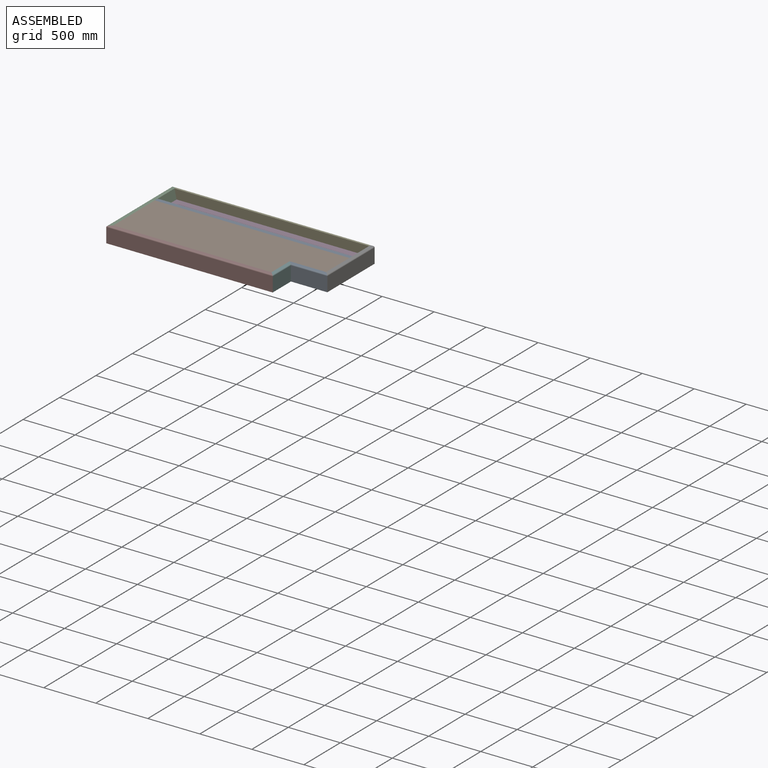
[diagram: assembled view]
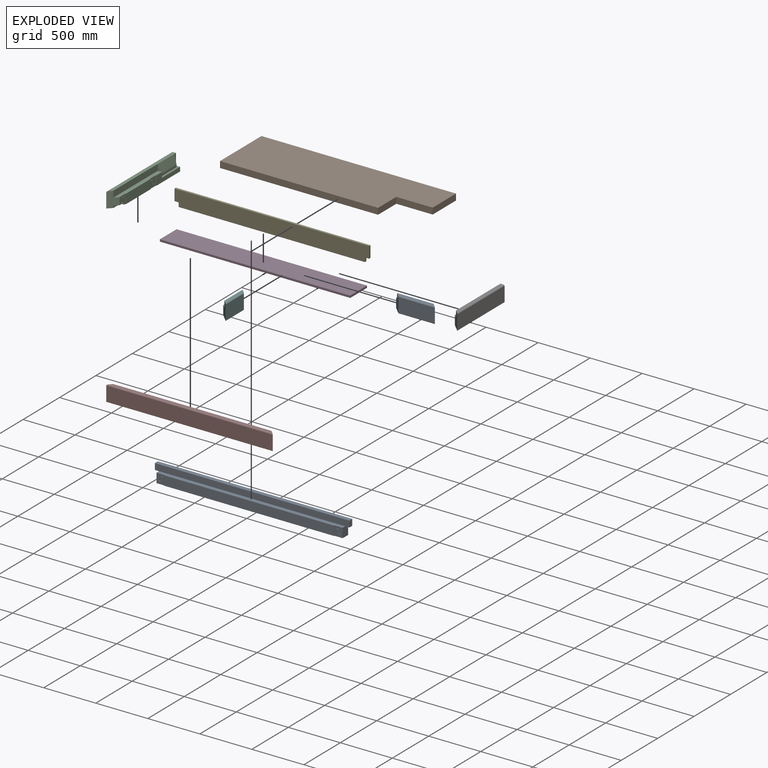
[diagram: exploded view]
GUIDED TOUR — MATED ASSEMBLY (Onshape document 42f6272286cb1acadc76b578, AutoMate assembly 42f6272286cb1acadc76b578_f72e64309311fbf2a8fe9fbc_b8c06668a1aec77b5423982b_default)

This assembly has 9 components, labeled P0..P8 below (a component is one placed occurrence of a part; the same part can appear more than once), held together by 7 mates. A mate is a constraint between two components; its type names the relative motion it leaves free:
  FASTENED — locks the two components together rigidly (no relative motion).
Axis/direction vectors are unit vectors and 'through' points are millimeter coordinates, both in the assembly's world frame.

MATES
  1. FASTENED "Fastened 5": P3 <-> P2, direction (0.000, 0.000, 1.000) through (60.00, 650.00, 40.00) mm
  2. FASTENED "Fastened 3": P5 <-> P7, direction (0.000, 0.000, 1.000) through (1600.00, 0.00, 0.00) mm
  3. FASTENED "Fastened 8": P2 <-> P4, direction (0.000, 1.000, 0.000) through (40.00, 900.00, 40.00) mm
  4. FASTENED "Fastened 6": P6 <-> P0, direction (0.000, 0.000, 1.000) through (1950.00, 250.00, 0.00) mm
  5. FASTENED "Fastened 9": P8 <-> P2, direction (0.000, 0.000, 1.000) through (40.00, 650.00, 90.00) mm
  6. FASTENED "Fastened 4": P0 <-> P5, direction (0.000, 0.000, 1.000) through (1525.00, 325.00, 0.00) mm
  7. FASTENED "Fastened 7": P7 <-> P1, direction (0.000, 0.000, 1.000) through (40.00, 40.00, 90.00) mm

ASSEMBLY ORDER
  1. P4 — the base component [order verified]
  2. P3 [order verified]
  3. P2 [order verified]
  4. P7 [order verified]
  5. P0 [order verified]
  6. P8 [order verified]
  7. P5 [order verified]
  8. P1 [order verified]
  9. P6 [order verified]
Order-tag legend:
  [order verified] — this step's position reverses a verified removal order: the component was checked to insert without passing through the ones already placed.

Of the 9 components, 6 carry the full construction recipe — the FeatureScript program that regenerates the part's solid from scratch; the rest are supplied as boundary geometry only.
Each toured component is shown spotlighted twice — in the assembled view, then in the exploded view, where a leader line traces a displaced component back to its assembled socket (saturated green if recipe-attached, orange if geometry-only; every other component desaturated gray) — followed by its recipe or geometry summary and the mates that hold it.
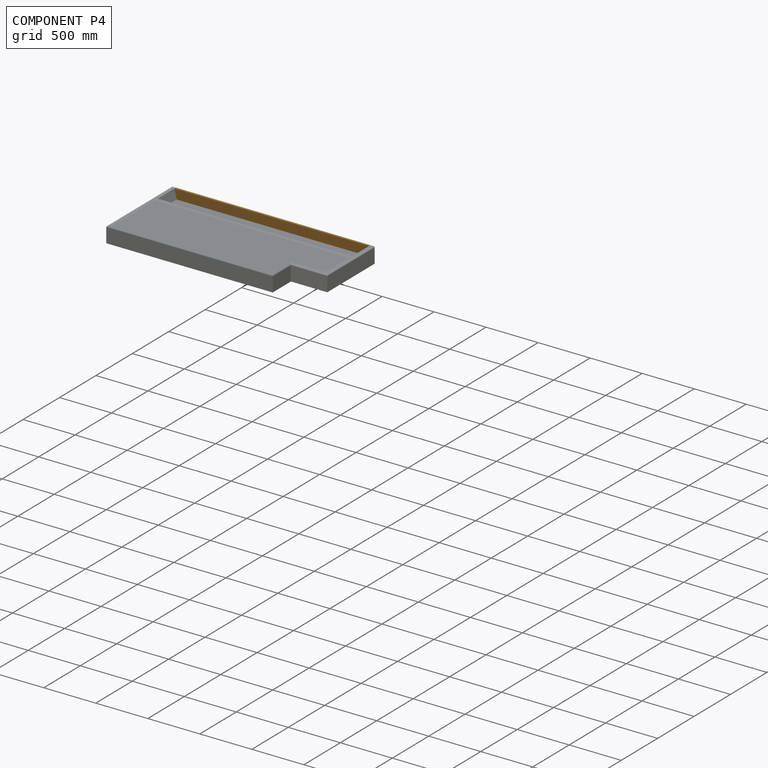
[diagram: component P4 — assembled]
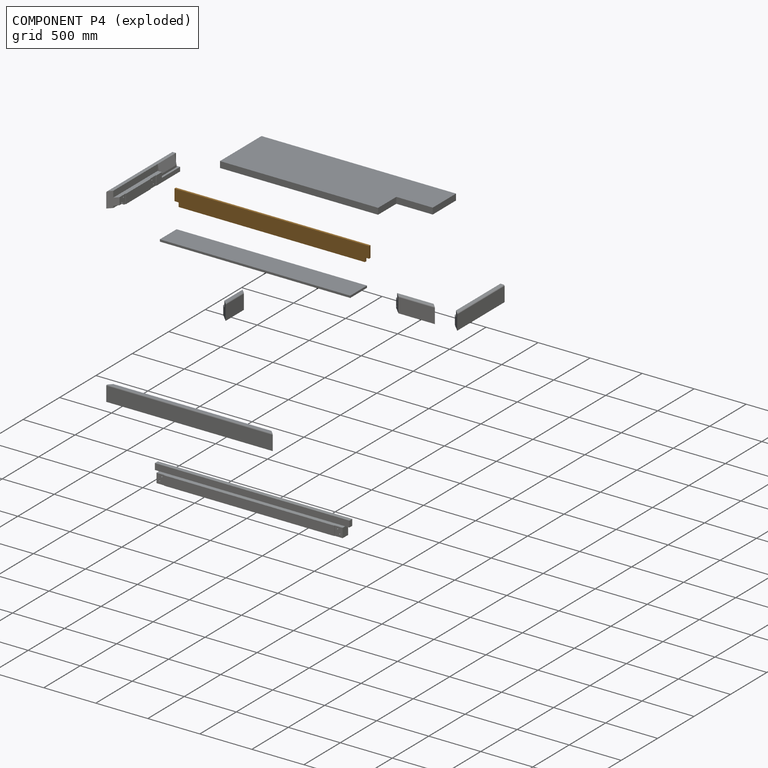
[diagram: component P4 — exploded]
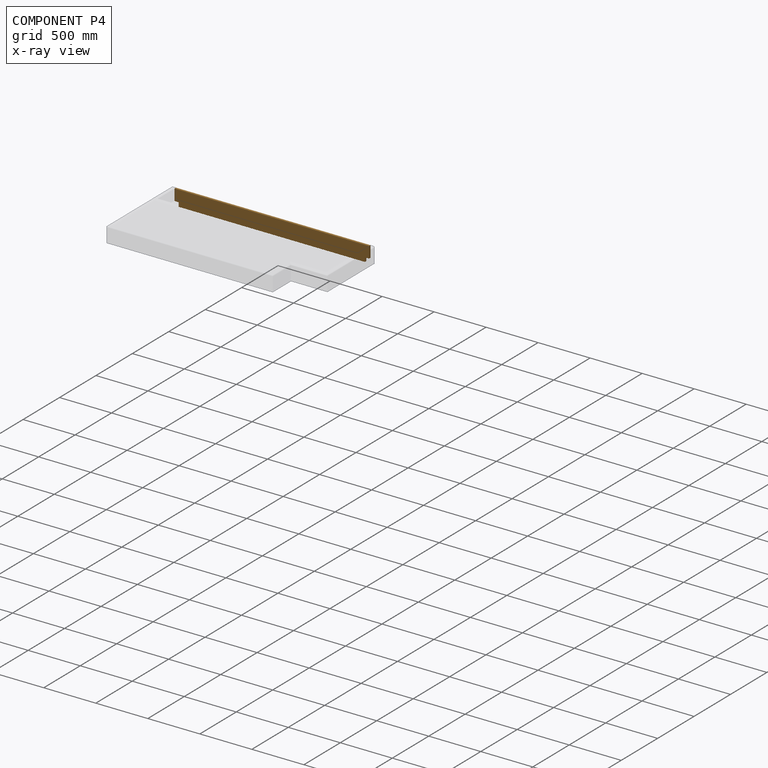
[diagram: component P4 — x-ray view]
COMPONENT P4 — geometry summary (no construction recipe available for this part):
  bounding box: 1870.0 x 150.0 x 20.0 mm
  B-rep topology: 1 solid, 10 faces, 48 edges
  volume: 5546000 mm^3 (99% of its bounding box)
  symmetry: 2-fold rotationally symmetric about the y axis; mirror-symmetric across its x mid-plane, z mid-plane
Held by: FASTENED mate "Fastened 8" to P2.
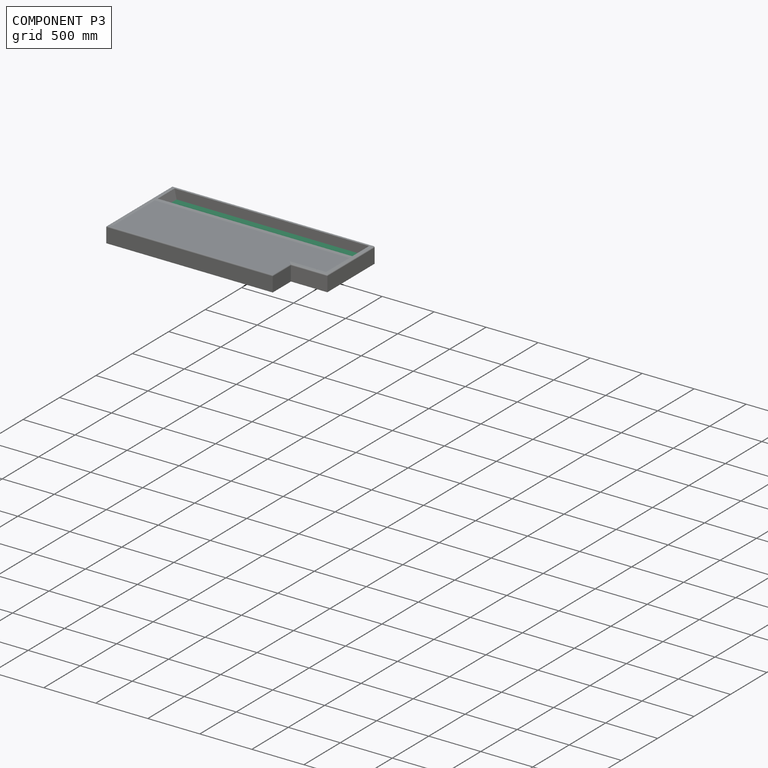
[diagram: component P3 — assembled]
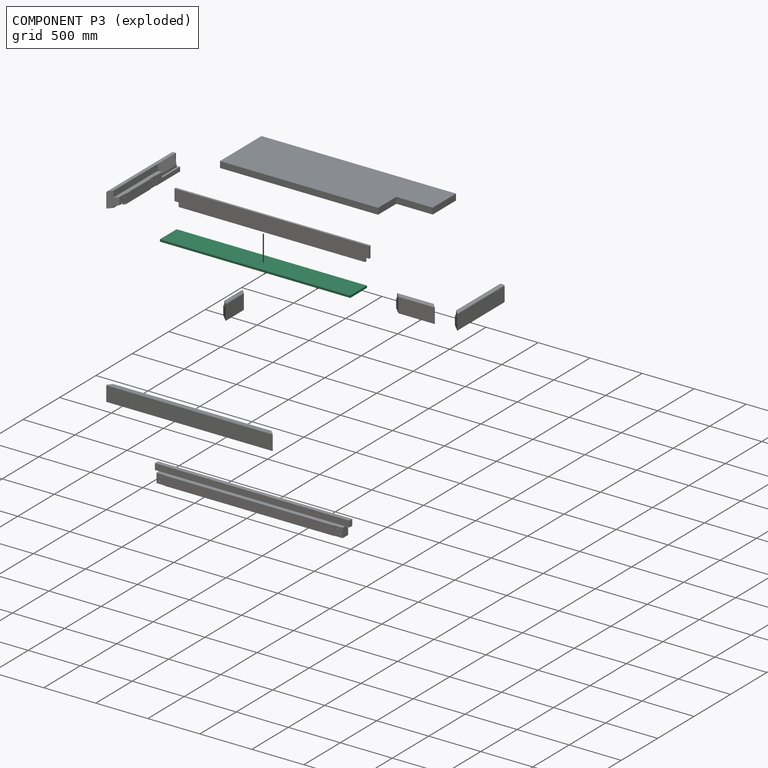
[diagram: component P3 — exploded]
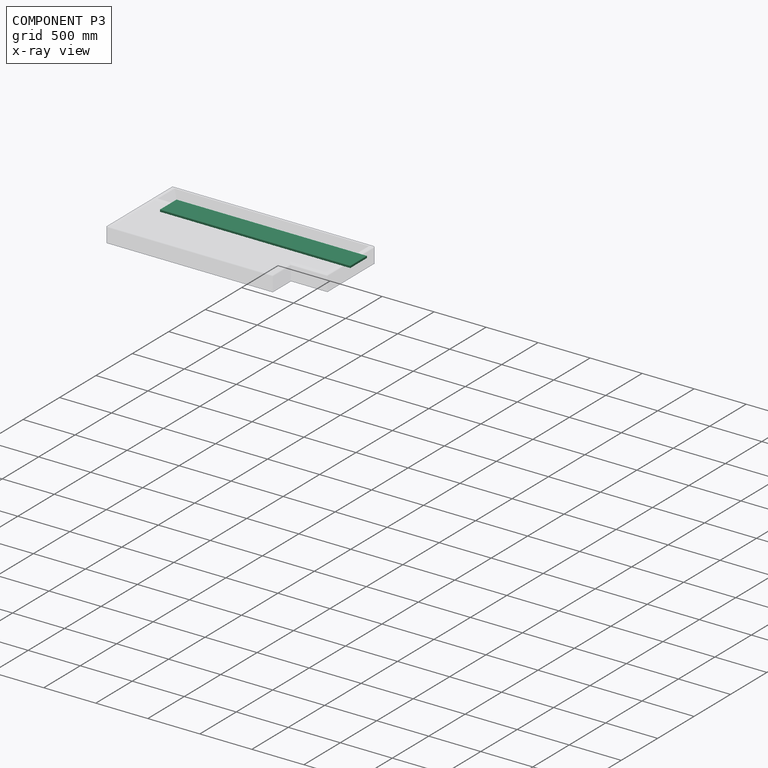
[diagram: component P3 — x-ray view]
COMPONENT P3 — recipe-attached (CADFS 00159863, mesh-verified: the recipe's output STEP matches this component's geometry to below the mesh-comparison resolution (tessellation chordal tolerance ~2.77 mm)).
Held by: FASTENED mate "Fastened 5" to P2.
Construction recipe (FeatureScript — the CAD program that rebuilds this solid; sketch coordinates are in the units given by the * unit suffixes, e.g. mm):

FeatureScript 1511;
import(path : "onshape/std/geometry.fs", version : "1511.0");
import(path : "onshape/std/common.fs", version : "1511.0");
const mm = millimeter;
const VERTEX = EntityType.VERTEX;
const EDGE = EntityType.EDGE;
const FACE = EntityType.FACE;
const BODY = EntityType.BODY;
function v(x, y){return vector(x, y);}
function OD(order){return orderDisambiguation(order);}
function OSD(set){return originalSetDisambiguation(set);}
function TD(topology){return topologyDisambiguation(topology);}
function TDD(query){return trueDependencyDisambiguation(query);}
function sQuery(a, b, c) {return sketchEntityQuery(a, b, c);}

annotation { "Feature Type Name" : "Feature", "Feature Type Description" : "" }
export const myFeature = defineFeature(function(context is Context, id is Id, definition is map)
    precondition{}
    {
        {
            assignVariable(context, id + "F0", {"name" : "t", "anyValue" : 20 * mm});
        }
        {
            var Q0;
            Q0=qCreatedBy(makeId("Top.planeOp"),FACE);
            var sketch = newSketch(context, id + "F1", { "sketchPlane" : qUnion([Q0])});
            skLineSegment(sketch, "E0.bottom", {"start": v(915, -115) * mm, "end": v(-915, -115) * mm});
            skLineSegment(sketch, "E0.top", {"start": v(915, 115) * mm, "end": v(-915, 115) * mm});
            skLineSegment(sketch, "E0.left", {"start": v(915, -115) * mm, "end": v(915, 115) * mm});
            skLineSegment(sketch, "E0.right", {"start": v(-915, -115) * mm, "end": v(-915, 115) * mm});
            skPoint(sketch, "E0.middle", {"position": v(0, 0) * mm});
            skSolve(sketch);
        }
        {
            var Q0;
            Q0 = qSketchRegion(id + "F1", true);
            extrude(context, id + "F2", {"entities" : qUnion([Q0]), "depth" : getVariable(context, 't')});
        }
    });
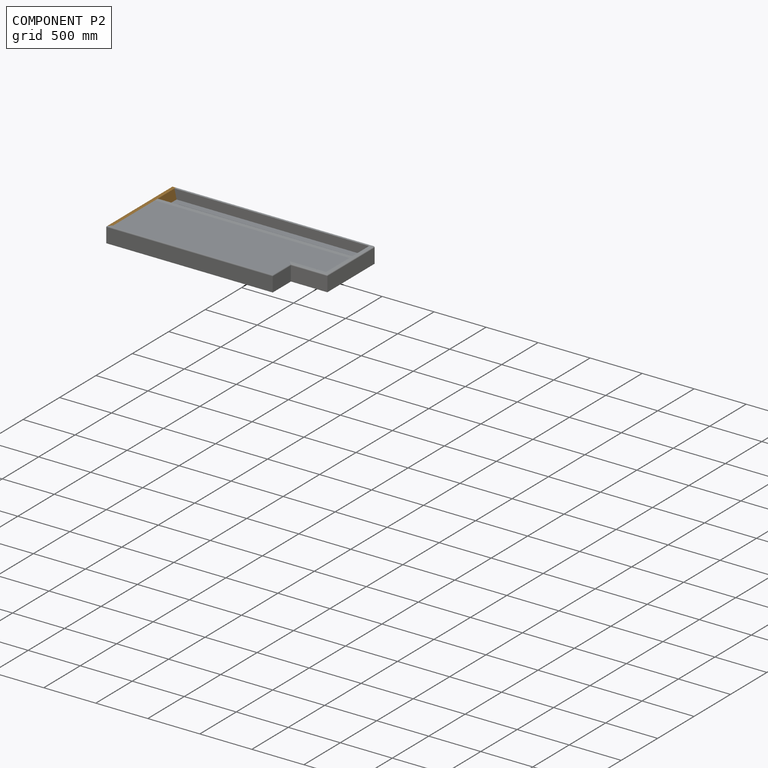
[diagram: component P2 — assembled]
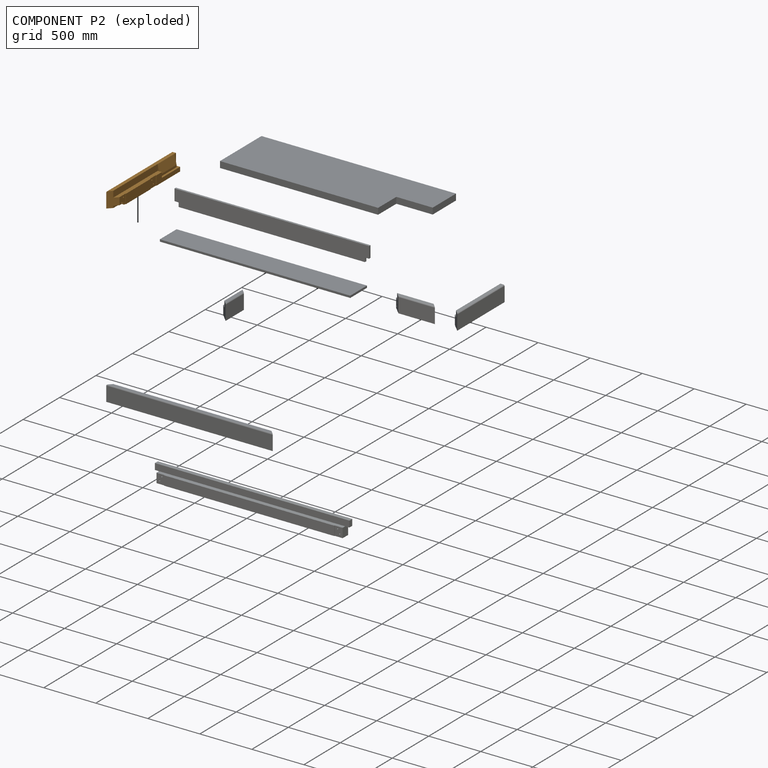
[diagram: component P2 — exploded]
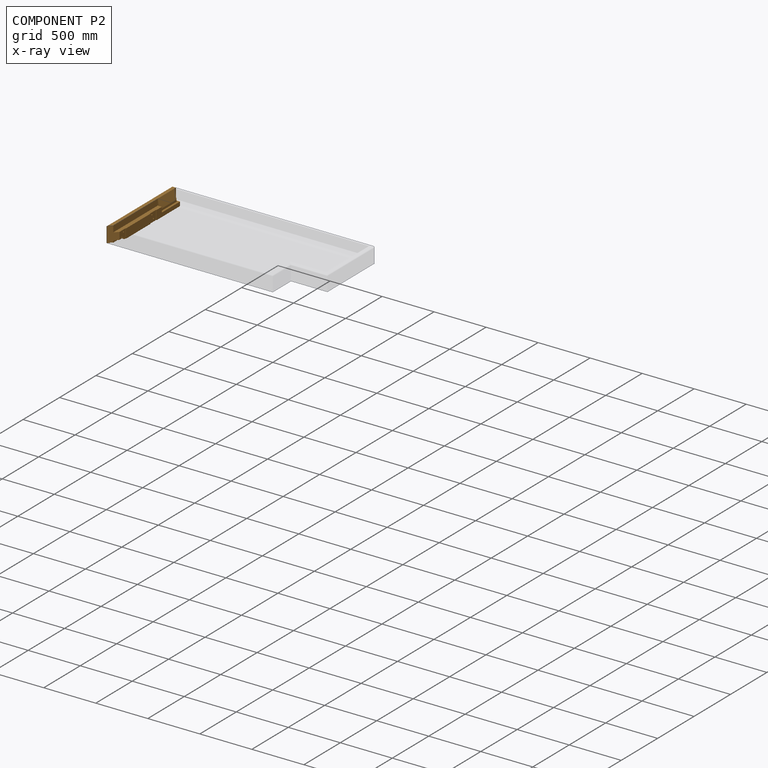
[diagram: component P2 — x-ray view]
COMPONENT P2 — geometry summary (no construction recipe available for this part):
  bounding box: 900.0 x 150.0 x 80.0 mm
  B-rep topology: 1 solid, 33 faces, 164 edges
  volume: 7933851 mm^3 (73% of its bounding box)
Held by: FASTENED mate "Fastened 5" to P3; FASTENED mate "Fastened 8" to P4; FASTENED mate "Fastened 9" to P8.
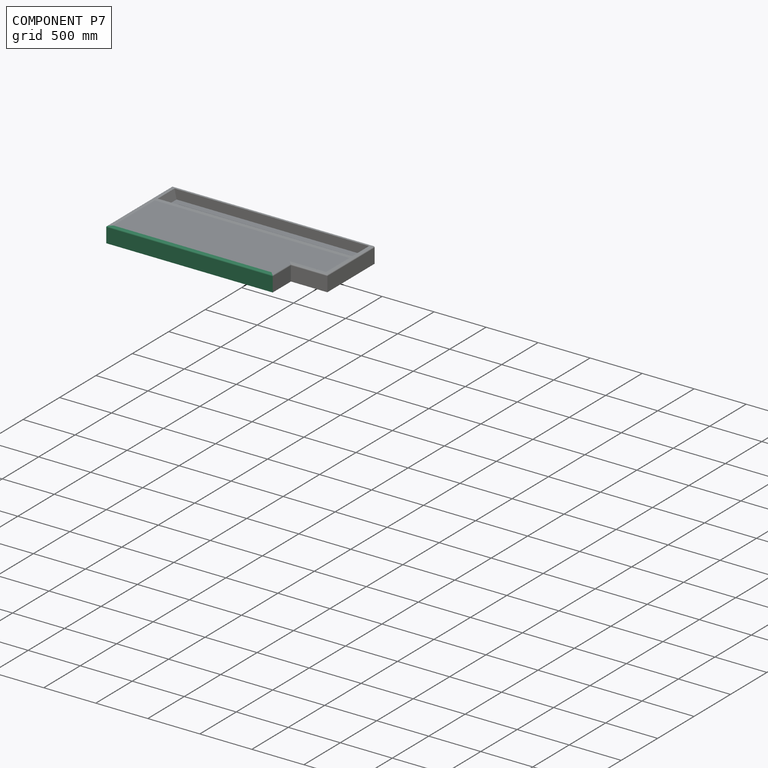
[diagram: component P7 — assembled]
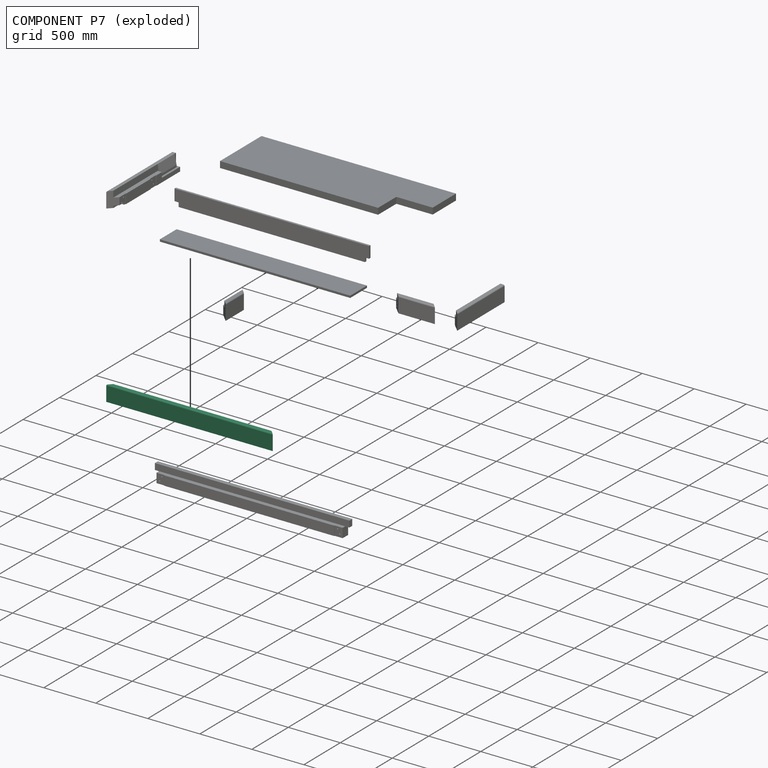
[diagram: component P7 — exploded]
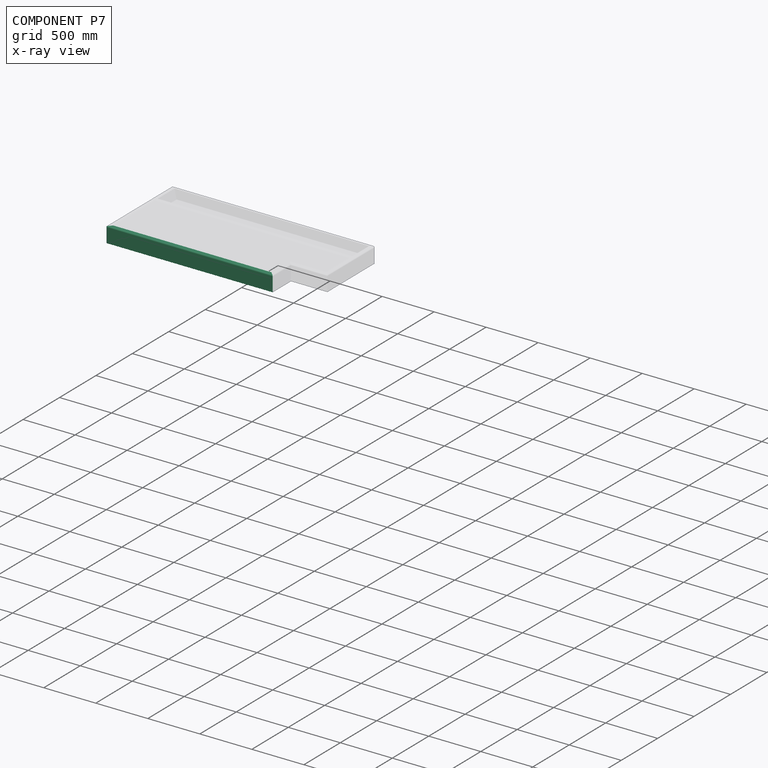
[diagram: component P7 — x-ray view]
COMPONENT P7 — recipe-attached (CADFS 00159865, mesh-verified: the recipe's output STEP matches this component's geometry to below the mesh-comparison resolution (tessellation chordal tolerance ~2.41 mm)).
Held by: FASTENED mate "Fastened 3" to P5; FASTENED mate "Fastened 7" to P1.
Construction recipe (FeatureScript — the CAD program that rebuilds this solid; sketch coordinates are in the units given by the * unit suffixes, e.g. mm):

FeatureScript 1511;
import(path : "onshape/std/geometry.fs", version : "1511.0");
import(path : "onshape/std/common.fs", version : "1511.0");
const mm = millimeter;
const VERTEX = EntityType.VERTEX;
const EDGE = EntityType.EDGE;
const FACE = EntityType.FACE;
const BODY = EntityType.BODY;
function v(x, y){return vector(x, y);}
function OD(order){return orderDisambiguation(order);}
function OSD(set){return originalSetDisambiguation(set);}
function TD(topology){return topologyDisambiguation(topology);}
function TDD(query){return trueDependencyDisambiguation(query);}
function sQuery(a, b, c) {return sketchEntityQuery(a, b, c);}

annotation { "Feature Type Name" : "Feature", "Feature Type Description" : "" }
export const myFeature = defineFeature(function(context is Context, id is Id, definition is map)
    precondition{}
    {
        {
            assignVariable(context, id + "F0", {"name" : "L", "anyValue" : 1700 * mm - 100 * mm});
        }
        {
            assignVariable(context, id + "F1", {"name" : "B", "anyValue" : 80 * mm});
        }
        {
            var Q0;
            Q0=qCreatedBy(makeId("Right.planeOp"),FACE);
            var sketch = newSketch(context, id + "F2", { "sketchPlane" : qUnion([Q0])});
            skLineSegment(sketch, "E0.bottom", {"start": v(-40, -75) * mm, "end": v(40, -75) * mm});
            skLineSegment(sketch, "E0.top", {"start": v(-40, 75) * mm, "end": v(0, 75) * mm});
            skLineSegment(sketch, "E0.left", {"start": v(-40, -75) * mm, "end": v(-40, 75) * mm});
            skLineSegment(sketch, "E0.right", {"start": v(40, -75) * mm, "end": v(40, 15) * mm});
            skPoint(sketch, "E0.middle", {"position": v(0, 0) * mm});
            skLineSegment(sketch, "E1", {"start": v(0, 75) * mm, "end": v(0, 15) * mm});
            skLineSegment(sketch, "E2", {"start": v(0, 15) * mm, "end": v(40, 15) * mm});
            skSolve(sketch);
        }
        {
            var Q0;
            Q0 = qSketchRegion(id + "F2", true);
            extrude(context, id + "F3", {"entities" : qUnion([Q0]), "endBound" : BoundingType.SYMMETRIC, "depth" : getVariable(context, 'L')});
        }
        {
            var Q0;
            Q0=makeQuery(id+"F3.opExtrude","CAP_EDGE",EDGE,{"disambiguationData":[OSD([sQuery(id+"F2.wireOp",EDGE,"E0.right")])],"isStart":false});
            var Q1;
            Q1=makeQuery(id+"F3.opExtrude","CAP_EDGE",EDGE,{"disambiguationData":[OSD([sQuery(id+"F2.wireOp",EDGE,"E0.right")])],"isStart":true});
            chamfer(context, id + "F4", {"entities" : qUnion([Q0, Q1]), "width" : getVariable(context, 'B'), "tangentPropagation" : true});
        }
        {
            var Q0;
            Q0=makeQuery(id+"F3.opExtrude","SWEPT_FACE",FACE,{"disambiguationData":[OSD([sQuery(id+"F2.wireOp",EDGE,"E0.right")])]});
            var sketch = newSketch(context, id + "F5", { "sketchPlane" : qUnion([Q0])});
            skCircle(sketch, "E3", {"center": v(-690, -45) * mm, "radius": 6 * mm});
            skCircle(sketch, "E4", {"center": v(-670, -5) * mm, "radius": 6 * mm});
            skCircle(sketch, "E5.MirrorC", {"center": v(670, -5) * mm, "radius": 6 * mm});
            skCircle(sketch, "E6.MirrorC", {"center": v(690, -45) * mm, "radius": 6 * mm});
            skSolve(sketch);
        }
        {
            var Q0;
            Q0 = qSketchRegion(id + "F5", true);
            extrude(context, id + "F6", {"entities" : qUnion([Q0]), "operationType" : NewBodyOperationType.REMOVE, "oppositeDirection" : true, "depth" : getVariable(context, 'B') - 30 * mm});
        }
        {
            var Q0;
            Q0=makeQuery(id+"F3.opExtrude","SWEPT_FACE",FACE,{"disambiguationData":[OSD([sQuery(id+"F2.wireOp",EDGE,"E0.right")])]});
            var sketch = newSketch(context, id + "F7", { "sketchPlane" : qUnion([Q0])});
            skLineSegment(sketch, "E7.bottom", {"start": v(-644, 15) * mm, "end": v(-760, 15) * mm});
            skLineSegment(sketch, "E7.top", {"start": v(-644, -75) * mm, "end": v(-760, -75) * mm});
            skLineSegment(sketch, "E7.left", {"start": v(-644, 15) * mm, "end": v(-644, -75) * mm});
            skLineSegment(sketch, "E7.right", {"start": v(-760, 15) * mm, "end": v(-760, -75) * mm});
            skLineSegment(sketch, "E8.MirrorCS", {"start": v(760, 15) * mm, "end": v(760, -75) * mm});
            skLineSegment(sketch, "E9.MirrorCS", {"start": v(644, 15) * mm, "end": v(760, 15) * mm});
            skLineSegment(sketch, "E10.MirrorCS", {"start": v(644, 15) * mm, "end": v(644, -75) * mm});
            skLineSegment(sketch, "E11.MirrorCS", {"start": v(644, -75) * mm, "end": v(760, -75) * mm});
            skSolve(sketch);
        }
        {
            var Q0;
            Q0 = qSketchRegion(id + "F7", true);
            extrude(context, id + "F8", {"entities" : qUnion([Q0]), "operationType" : NewBodyOperationType.REMOVE, "oppositeDirection" : true, "depth" : 5 * mm});
        }
        {
            var Q0;
            Q0=makeQuery(id+"F3.opExtrude","SWEPT_EDGE",EDGE,{"disambiguationData":[OSD([sQuery(id+"F2.wireOp",EDGE,"E0.top"),sQuery(id+"F2.wireOp",EDGE,"E0.left")])]});
            fillet(context, id + "F9", {"entities" : qUnion([Q0]), "radius" : 10 * mm, "tangentPropagation" : true, "allowEdgeOverflow" : false});
        }
        {
            var Q0;
            Q0=makeQuery(id+"F3.opExtrude","SWEPT_FACE",FACE,{"disambiguationData":[OSD([sQuery(id+"F2.wireOp",EDGE,"E0.bottom")])]});
            var sketch = newSketch(context, id + "F10", { "sketchPlane" : qUnion([Q0])});
            skLineSegment(sketch, "E12.bottom", {"start": v(-660, -100) * mm, "end": v(-760, -100) * mm});
            skLineSegment(sketch, "E12.top", {"start": v(-660, 0) * mm, "end": v(-760, 0) * mm});
            skLineSegment(sketch, "E12.left", {"start": v(-660, -100) * mm, "end": v(-660, 0) * mm});
            skLineSegment(sketch, "E12.right", {"start": v(-760, -100) * mm, "end": v(-760, 0) * mm});
            skLineSegment(sketch, "E13", {"start": v(-660, -50) * mm, "end": v(-760, -50) * mm, "construction": true});
            skSolve(sketch);
        }
        {
            var Q0;
            Q0 = qSketchRegion(id + "F10", true);
            extrude(context, id + "F11", {"entities" : qUnion([Q0]), "operationType" : NewBodyOperationType.REMOVE, "oppositeDirection" : true, "depth" : 20 * mm});
        }
    });
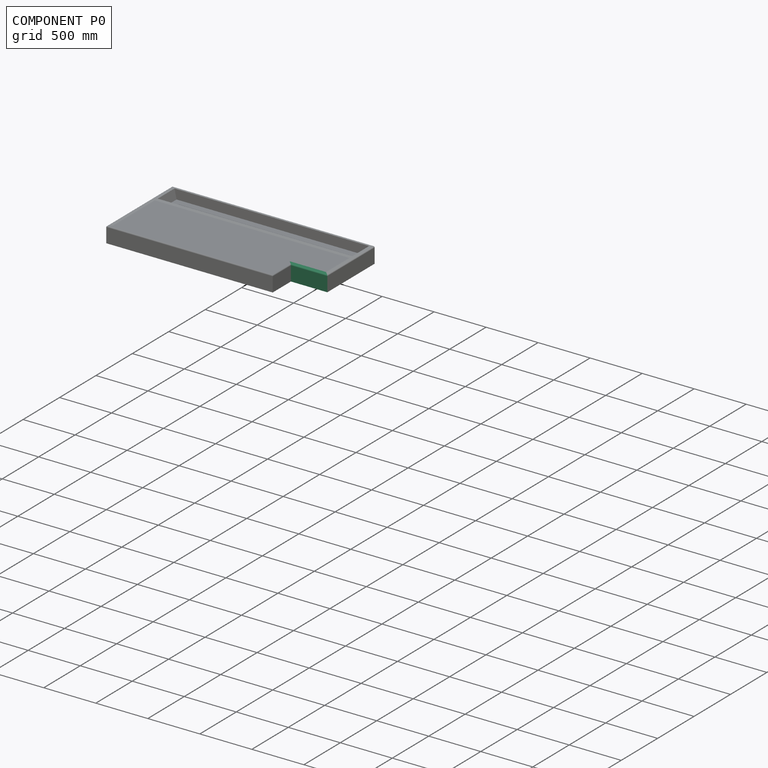
[diagram: component P0 — assembled]
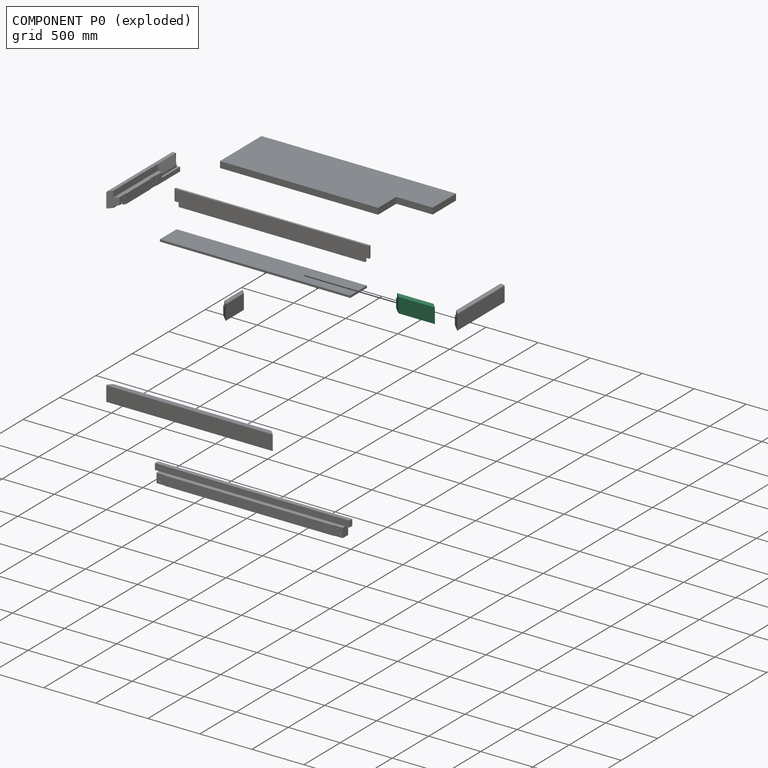
[diagram: component P0 — exploded]
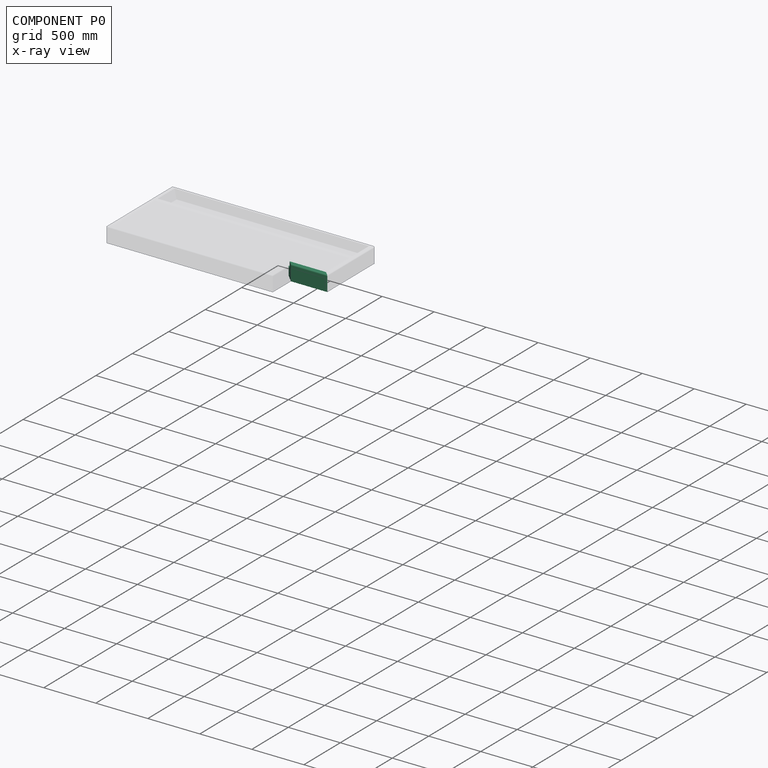
[diagram: component P0 — x-ray view]
COMPONENT P0 — recipe-attached (CADFS 00159867, mesh-verified: the recipe's output STEP matches this component's geometry to below the mesh-comparison resolution (tessellation chordal tolerance ~0.687 mm)).
Held by: FASTENED mate "Fastened 6" to P6; FASTENED mate "Fastened 4" to P5.
Construction recipe (FeatureScript — the CAD program that rebuilds this solid; sketch coordinates are in the units given by the * unit suffixes, e.g. mm):

FeatureScript 1511;
import(path : "onshape/std/geometry.fs", version : "1511.0");
import(path : "onshape/std/common.fs", version : "1511.0");
const mm = millimeter;
const VERTEX = EntityType.VERTEX;
const EDGE = EntityType.EDGE;
const FACE = EntityType.FACE;
const BODY = EntityType.BODY;
function v(x, y){return vector(x, y);}
function OD(order){return orderDisambiguation(order);}
function OSD(set){return originalSetDisambiguation(set);}
function TD(topology){return topologyDisambiguation(topology);}
function TDD(query){return trueDependencyDisambiguation(query);}
function sQuery(a, b, c) {return sketchEntityQuery(a, b, c);}

annotation { "Feature Type Name" : "Feature", "Feature Type Description" : "" }
export const myFeature = defineFeature(function(context is Context, id is Id, definition is map)
    precondition{}
    {
        {
            assignVariable(context, id + "F0", {"name" : "L", "anyValue" : 330 * mm + 100 * mm});
        }
        {
            assignVariable(context, id + "F1", {"name" : "B", "anyValue" : 80 * mm});
        }
        {
            var Q0;
            Q0=qCreatedBy(makeId("Right.planeOp"),FACE);
            var sketch = newSketch(context, id + "F2", { "sketchPlane" : qUnion([Q0])});
            skLineSegment(sketch, "E0.bottom", {"start": v(-40, -75) * mm, "end": v(40, -75) * mm});
            skLineSegment(sketch, "E0.top", {"start": v(-40, 75) * mm, "end": v(0, 75) * mm});
            skLineSegment(sketch, "E0.left", {"start": v(-40, -75) * mm, "end": v(-40, 75) * mm});
            skLineSegment(sketch, "E0.right", {"start": v(40, -75) * mm, "end": v(40, 15) * mm});
            skPoint(sketch, "E0.middle", {"position": v(0, 0) * mm});
            skLineSegment(sketch, "E1", {"start": v(0, 75) * mm, "end": v(0, 15) * mm});
            skLineSegment(sketch, "E2", {"start": v(0, 15) * mm, "end": v(40, 15) * mm});
            skSolve(sketch);
        }
        {
            var Q0;
            Q0=qSketchRegion(id+"F2",true);
            extrude(context, id + "F3", {"entities" : qUnion([Q0]), "endBound" : BoundingType.SYMMETRIC, "depth" : getVariable(context, 'L')});
        }
        {
            var Q0;
            Q0=makeQuery(id+"F3.opExtrude","CAP_EDGE",EDGE,{"disambiguationData":[OSD([sQuery(id+"F2.wireOp",EDGE,"E0.right")])],"isStart":false});
            var Q1;
            Q1=makeQuery(id+"F3.opExtrude","CAP_EDGE",EDGE,{"disambiguationData":[OSD([sQuery(id+"F2.wireOp",EDGE,"E0.left")])],"isStart":true});
            chamfer(context, id + "F4", {"entities" : qUnion([Q0, Q1]), "width" : getVariable(context, 'B'), "tangentPropagation" : true});
        }
        {
            var Q0;
            Q0=makeQuery(id+"F3.opExtrude","SWEPT_FACE",FACE,{"disambiguationData":[OSD([sQuery(id+"F2.wireOp",EDGE,"E0.right")])]});
            var sketch = newSketch(context, id + "F5", { "sketchPlane" : qUnion([Q0])});
            skCircle(sketch, "E3", {"center": v(-105, -45) * mm, "radius": 6 * mm});
            skCircle(sketch, "E4", {"center": v(-85, -5) * mm, "radius": 6 * mm});
            skLineSegment(sketch, "E5", {"start": v(40, 15) * mm, "end": v(40, -75) * mm, "construction": true});
            skCircle(sketch, "E6.MirrorC", {"center": v(165, -5) * mm, "radius": 6 * mm});
            skCircle(sketch, "E7.MirrorC", {"center": v(185, -45) * mm, "radius": 6 * mm});
            skSolve(sketch);
        }
        {
            var Q0;
            Q0=qSketchRegion(id+"F5",true);
            extrude(context, id + "F6", {"entities" : qUnion([Q0]), "operationType" : NewBodyOperationType.REMOVE, "oppositeDirection" : true, "depth" : getVariable(context, 'B') - 30 * mm});
        }
        {
            var Q0;
            Q0=makeQuery(id+"F3.opExtrude","SWEPT_FACE",FACE,{"disambiguationData":[OSD([sQuery(id+"F2.wireOp",EDGE,"E0.right")])]});
            var sketch = newSketch(context, id + "F7", { "sketchPlane" : qUnion([Q0])});
            skLineSegment(sketch, "E8.bottom", {"start": v(-59, 15) * mm, "end": v(-175, 15) * mm});
            skLineSegment(sketch, "E8.top", {"start": v(-59, -75) * mm, "end": v(-175, -75) * mm});
            skLineSegment(sketch, "E8.left", {"start": v(-59, 15) * mm, "end": v(-59, -75) * mm});
            skLineSegment(sketch, "E8.right", {"start": v(-175, 15) * mm, "end": v(-175, -75) * mm});
            skLineSegment(sketch, "E9", {"start": v(40, 15) * mm, "end": v(40, -75) * mm, "construction": true});
            skLineSegment(sketch, "E10.MirrorCS", {"start": v(139, 15) * mm, "end": v(139, -75) * mm});
            skLineSegment(sketch, "E11.MirrorCS", {"start": v(139, 15) * mm, "end": v(255, 15) * mm});
            skLineSegment(sketch, "E12.MirrorCS", {"start": v(139, -75) * mm, "end": v(255, -75) * mm});
            skLineSegment(sketch, "E13.MirrorCS", {"start": v(255, 15) * mm, "end": v(255, -75) * mm});
            skSolve(sketch);
        }
        {
            var Q0;
            Q0=qSketchRegion(id+"F7",true);
            extrude(context, id + "F8", {"entities" : qUnion([Q0]), "operationType" : NewBodyOperationType.REMOVE, "oppositeDirection" : true, "depth" : 5 * mm});
        }
        {
            var Q0;
            Q0=makeQuery(id+"F3.opExtrude","SWEPT_EDGE",EDGE,{"disambiguationData":[OSD([sQuery(id+"F2.wireOp",EDGE,"E0.top"),sQuery(id+"F2.wireOp",EDGE,"E0.left")])]});
            fillet(context, id + "F9", {"entities" : qUnion([Q0]), "radius" : 10 * mm, "tangentPropagation" : true, "allowEdgeOverflow" : false});
        }
    });
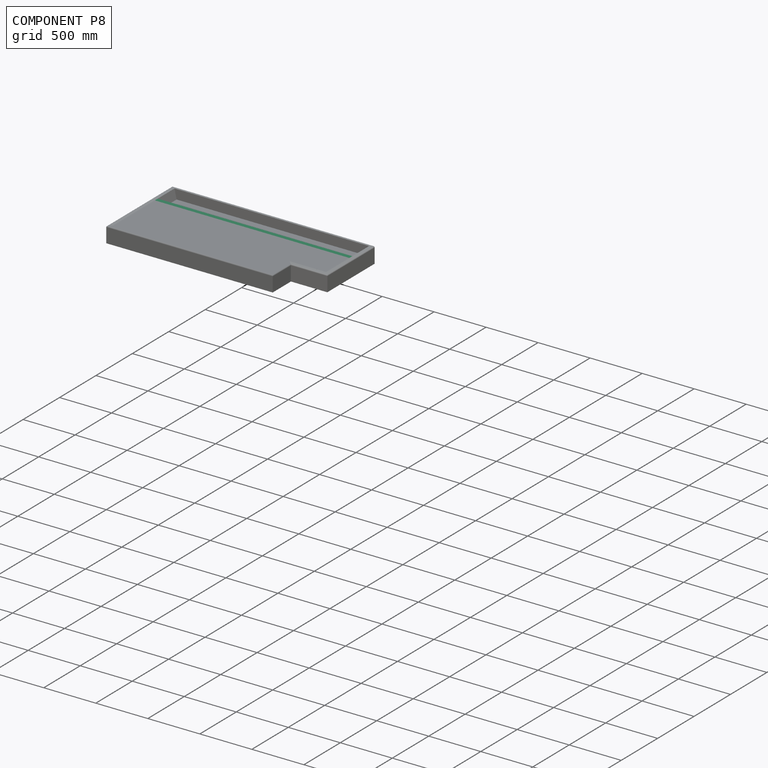
[diagram: component P8 — assembled]
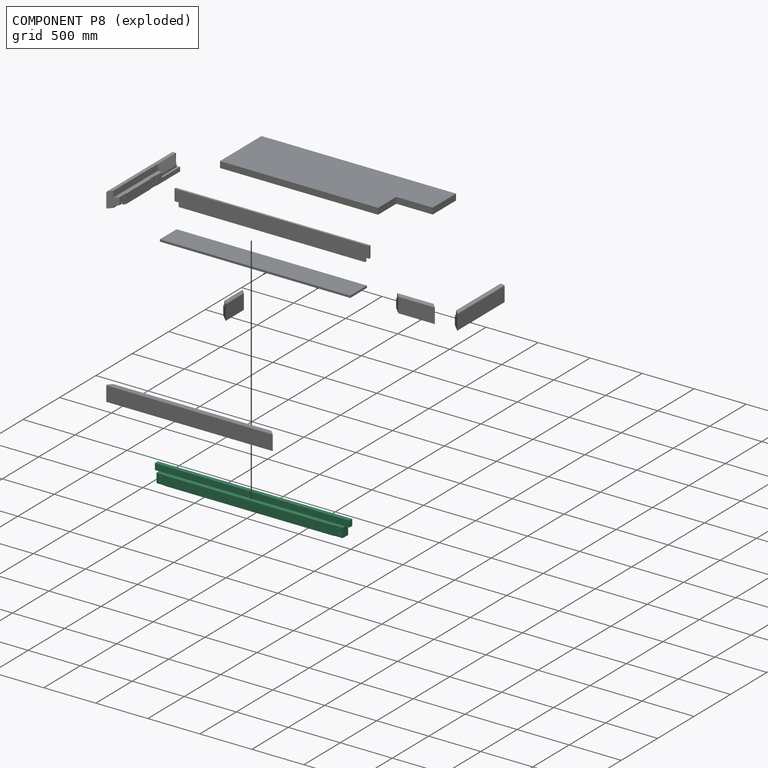
[diagram: component P8 — exploded]
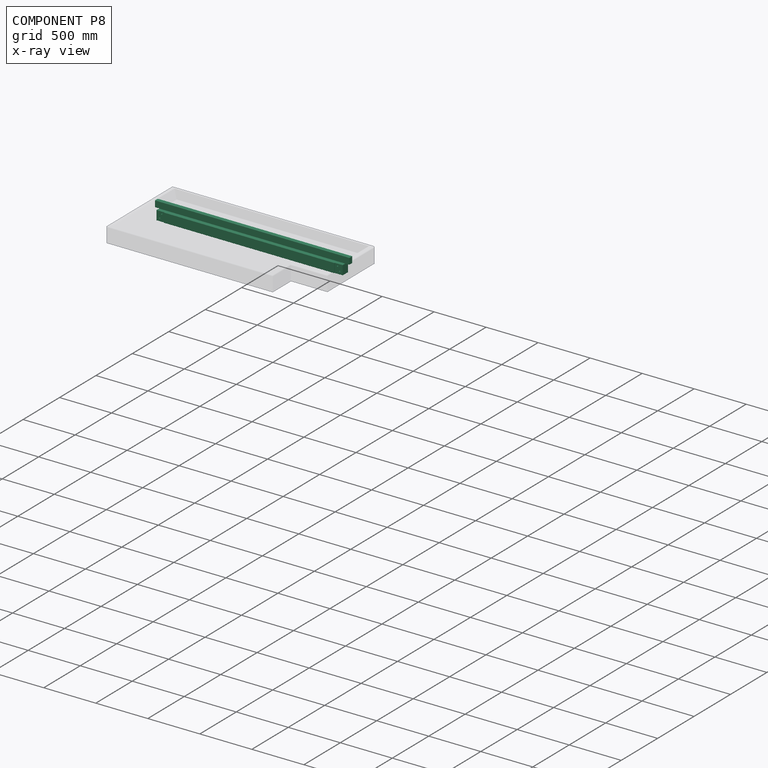
[diagram: component P8 — x-ray view]
COMPONENT P8 — recipe-attached (CADFS 00159870, mesh-verified: the recipe's output STEP matches this component's geometry to below the mesh-comparison resolution (tessellation chordal tolerance ~2.82 mm)).
Held by: FASTENED mate "Fastened 9" to P2.
Construction recipe (FeatureScript — the CAD program that rebuilds this solid; sketch coordinates are in the units given by the * unit suffixes, e.g. mm):

FeatureScript 1511;
import(path : "onshape/std/geometry.fs", version : "1511.0");
import(path : "onshape/std/common.fs", version : "1511.0");
const mm = millimeter;
const VERTEX = EntityType.VERTEX;
const EDGE = EntityType.EDGE;
const FACE = EntityType.FACE;
const BODY = EntityType.BODY;
function v(x, y){return vector(x, y);}
function OD(order){return orderDisambiguation(order);}
function OSD(set){return originalSetDisambiguation(set);}
function TD(topology){return topologyDisambiguation(topology);}
function TDD(query){return trueDependencyDisambiguation(query);}
function sQuery(a, b, c) {return sketchEntityQuery(a, b, c);}

annotation { "Feature Type Name" : "Feature", "Feature Type Description" : "" }
export const myFeature = defineFeature(function(context is Context, id is Id, definition is map)
    precondition{}
    {
        {
            assignVariable(context, id + "F0", {"name" : "B", "anyValue" : 80 * mm});
        }
        {
            assignVariable(context, id + "F1", {"name" : "L", "anyValue" : 1790 * mm});
        }
        {
            var Q0;
            Q0=qCreatedBy(makeId("Right.planeOp"),FACE);
            var sketch = newSketch(context, id + "F2", { "sketchPlane" : qUnion([Q0])});
            skLineSegment(sketch, "E0.bottom", {"start": v(-40, -75) * mm, "end": v(40, -75) * mm});
            skLineSegment(sketch, "E0.top", {"start": v(-40, 75) * mm, "end": v(0, 75) * mm});
            skLineSegment(sketch, "E0.left", {"start": v(-40, -75) * mm, "end": v(-40, 75) * mm});
            skLineSegment(sketch, "E0.right", {"start": v(40, -75) * mm, "end": v(40, 15) * mm});
            skPoint(sketch, "E0.middle", {"position": v(0, 0) * mm});
            skLineSegment(sketch, "E1", {"start": v(0, 75) * mm, "end": v(0, 15) * mm});
            skLineSegment(sketch, "E2", {"start": v(0, 15) * mm, "end": v(40, 15) * mm});
            skSolve(sketch);
        }
        {
            var Q0;
            Q0=qSketchRegion(id+"F2",true);
            extrude(context, id + "F3", {"entities" : qUnion([Q0]), "endBound" : BoundingType.SYMMETRIC, "depth" : getVariable(context, 'L')});
        }
        {
            var Q0;
            Q0=makeQuery(id+"F3.opExtrude","SWEPT_FACE",FACE,{"disambiguationData":[OSD([sQuery(id+"F2.wireOp",EDGE,"E0.right")])]});
            var sketch = newSketch(context, id + "F4", { "sketchPlane" : qUnion([Q0])});
            skCircle(sketch, "E3", {"center": v(-865, -45) * mm, "radius": 6 * mm});
            skCircle(sketch, "E4", {"center": v(-845, -5) * mm, "radius": 6 * mm});
            skCircle(sketch, "E5.MirrorC", {"center": v(845, -5) * mm, "radius": 6 * mm});
            skCircle(sketch, "E6.MirrorC", {"center": v(865, -45) * mm, "radius": 6 * mm});
            skSolve(sketch);
        }
        {
            var Q0;
            Q0=qSketchRegion(id+"F4",true);
            extrude(context, id + "F5", {"entities" : qUnion([Q0]), "operationType" : NewBodyOperationType.REMOVE, "oppositeDirection" : true, "depth" : getVariable(context, 'B') - 30 * mm});
        }
        {
            var Q0;
            Q0=makeQuery(id+"F3.opExtrude","SWEPT_FACE",FACE,{"disambiguationData":[OSD([sQuery(id+"F2.wireOp",EDGE,"E0.right")])]});
            var sketch = newSketch(context, id + "F6", { "sketchPlane" : qUnion([Q0])});
            skLineSegment(sketch, "E7.bottom", {"start": v(-819, 15) * mm, "end": v(-895, 15) * mm});
            skLineSegment(sketch, "E7.top", {"start": v(-819, -75) * mm, "end": v(-895, -75) * mm});
            skLineSegment(sketch, "E7.left", {"start": v(-819, 15) * mm, "end": v(-819, -75) * mm});
            skLineSegment(sketch, "E7.right", {"start": v(-895, 15) * mm, "end": v(-895, -75) * mm});
            skLineSegment(sketch, "E8.MirrorCS", {"start": v(895, 15) * mm, "end": v(895, -75) * mm});
            skLineSegment(sketch, "E9.MirrorCS", {"start": v(819, 15) * mm, "end": v(895, 15) * mm});
            skLineSegment(sketch, "E10.MirrorCS", {"start": v(819, 15) * mm, "end": v(819, -75) * mm});
            skLineSegment(sketch, "E11.MirrorCS", {"start": v(819, -75) * mm, "end": v(895, -75) * mm});
            skSolve(sketch);
        }
        {
            var Q0;
            Q0=qSketchRegion(id+"F6",true);
            extrude(context, id + "F7", {"entities" : qUnion([Q0]), "operationType" : NewBodyOperationType.REMOVE, "oppositeDirection" : true, "depth" : 5 * mm});
        }
        {
            var Q0;
            Q0=qCreatedBy(makeId("Right.planeOp"),FACE);
            var sketch = newSketch(context, id + "F8", { "sketchPlane" : qUnion([Q0])});
            skLineSegment(sketch, "E12.bottom", {"start": v(0, 15) * mm, "end": v(-40, 15) * mm});
            skLineSegment(sketch, "E12.top", {"start": v(0, 75) * mm, "end": v(-40, 75) * mm});
            skLineSegment(sketch, "E12.left", {"start": v(0, 15) * mm, "end": v(0, 75) * mm});
            skLineSegment(sketch, "E12.right", {"start": v(-40, 15) * mm, "end": v(-40, 75) * mm});
            skSolve(sketch);
        }
        {
            var Q0;
            Q0 = qSketchRegion(id + "F8", true);
            extrude(context, id + "F9", {"entities" : qUnion([Q0]), "operationType" : NewBodyOperationType.ADD, "endBound" : BoundingType.SYMMETRIC, "depth" : 40 * mm * 2 + getVariable(context, 'L')});
        }
    });
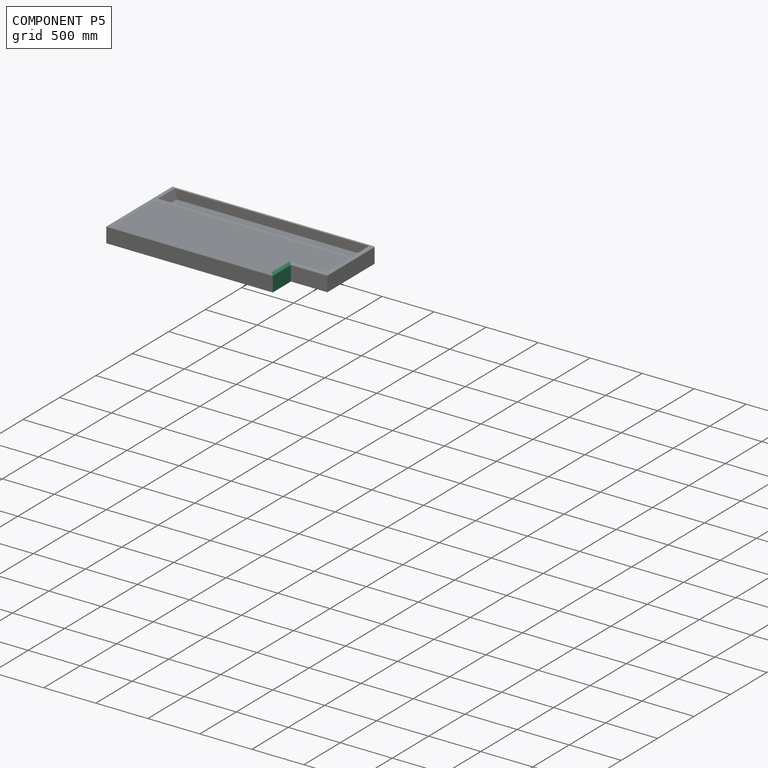
[diagram: component P5 — assembled]
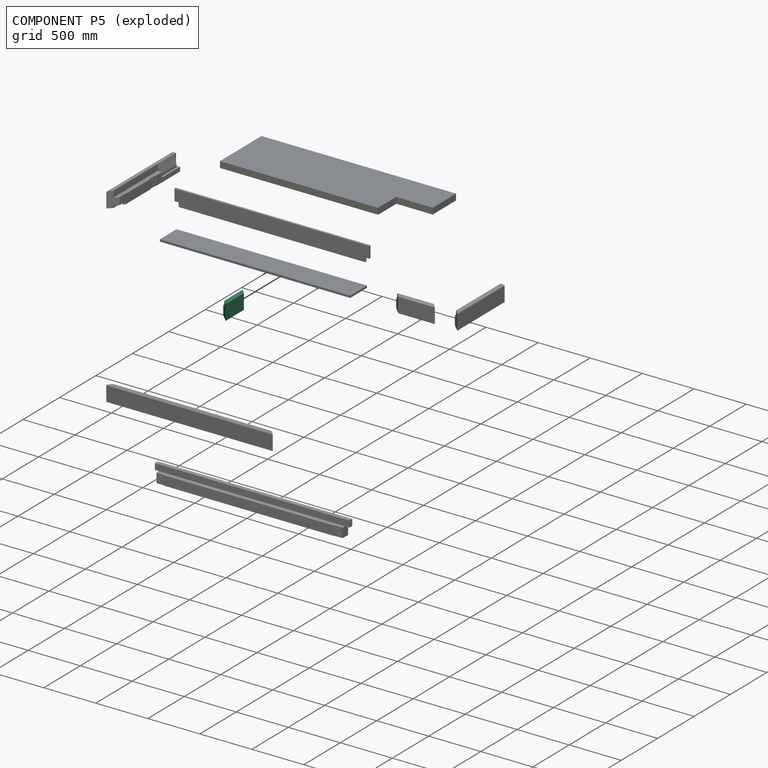
[diagram: component P5 — exploded]
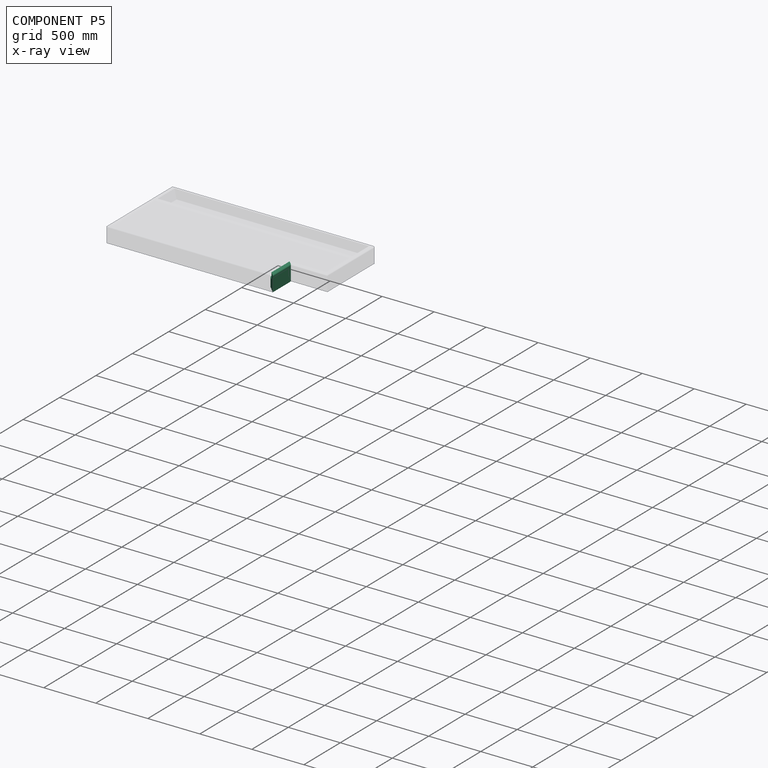
[diagram: component P5 — x-ray view]
COMPONENT P5 — recipe-attached (CADFS 00159866, mesh-verified: the recipe's output STEP matches this component's geometry to below the mesh-comparison resolution (tessellation chordal tolerance ~0.55 mm)).
Held by: FASTENED mate "Fastened 3" to P7; FASTENED mate "Fastened 4" to P0.
Construction recipe (FeatureScript — the CAD program that rebuilds this solid; sketch coordinates are in the units given by the * unit suffixes, e.g. mm):

FeatureScript 1511;
import(path : "onshape/std/geometry.fs", version : "1511.0");
import(path : "onshape/std/common.fs", version : "1511.0");
const mm = millimeter;
const VERTEX = EntityType.VERTEX;
const EDGE = EntityType.EDGE;
const FACE = EntityType.FACE;
const BODY = EntityType.BODY;
function v(x, y){return vector(x, y);}
function OD(order){return orderDisambiguation(order);}
function OSD(set){return originalSetDisambiguation(set);}
function TD(topology){return topologyDisambiguation(topology);}
function TDD(query){return trueDependencyDisambiguation(query);}
function sQuery(a, b, c) {return sketchEntityQuery(a, b, c);}

annotation { "Feature Type Name" : "Feature", "Feature Type Description" : "" }
export const myFeature = defineFeature(function(context is Context, id is Id, definition is map)
    precondition{}
    {
        {
            assignVariable(context, id + "F0", {"name" : "L", "anyValue" : 280 * mm + 50 * mm});
        }
        {
            assignVariable(context, id + "F1", {"name" : "B", "anyValue" : 80 * mm});
        }
        {
            var Q0;
            Q0=qCreatedBy(makeId("Right.planeOp"),FACE);
            var sketch = newSketch(context, id + "F2", { "sketchPlane" : qUnion([Q0])});
            skLineSegment(sketch, "E0.bottom", {"start": v(-40, -75) * mm, "end": v(40, -75) * mm});
            skLineSegment(sketch, "E0.top", {"start": v(-40, 75) * mm, "end": v(0, 75) * mm});
            skLineSegment(sketch, "E0.left", {"start": v(-40, -75) * mm, "end": v(-40, 75) * mm});
            skLineSegment(sketch, "E0.right", {"start": v(40, -75) * mm, "end": v(40, 15) * mm});
            skPoint(sketch, "E0.middle", {"position": v(0, 0) * mm});
            skLineSegment(sketch, "E1", {"start": v(0, 75) * mm, "end": v(0, 15) * mm});
            skLineSegment(sketch, "E2", {"start": v(0, 15) * mm, "end": v(40, 15) * mm});
            skSolve(sketch);
        }
        {
            var Q0;
            Q0=qSketchRegion(id+"F2",true);
            extrude(context, id + "F3", {"entities" : qUnion([Q0]), "endBound" : BoundingType.SYMMETRIC, "depth" : getVariable(context, 'L')});
        }
        {
            var Q0;
            Q0=makeQuery(id+"F3.opExtrude","CAP_EDGE",EDGE,{"disambiguationData":[OSD([sQuery(id+"F2.wireOp",EDGE,"E0.right")])],"isStart":true});
            var Q1;
            Q1=makeQuery(id+"F3.opExtrude","CAP_EDGE",EDGE,{"disambiguationData":[OSD([sQuery(id+"F2.wireOp",EDGE,"E0.left")])],"isStart":false});
            chamfer(context, id + "F4", {"entities" : qUnion([Q0, Q1]), "width" : getVariable(context, 'B'), "tangentPropagation" : true});
        }
        {
            var Q0;
            Q0=makeQuery(id+"F3.opExtrude","SWEPT_FACE",FACE,{"disambiguationData":[OSD([sQuery(id+"F2.wireOp",EDGE,"E0.right")])]});
            var sketch = newSketch(context, id + "F5", { "sketchPlane" : qUnion([Q0])});
            skCircle(sketch, "E3.MirrorC", {"center": v(35, -5) * mm, "radius": 6 * mm});
            skCircle(sketch, "E4.MirrorC", {"center": v(55, -45) * mm, "radius": 6 * mm});
            skLineSegment(sketch, "E5", {"start": v(-40, 15) * mm, "end": v(-40, -75) * mm, "construction": true});
            skCircle(sketch, "E6.MirrorC", {"center": v(-115, -5) * mm, "radius": 6 * mm});
            skCircle(sketch, "E7.MirrorC", {"center": v(-135, -45) * mm, "radius": 6 * mm});
            skSolve(sketch);
        }
        {
            var Q0;
            Q0=qSketchRegion(id+"F5",true);
            extrude(context, id + "F6", {"entities" : qUnion([Q0]), "operationType" : NewBodyOperationType.REMOVE, "oppositeDirection" : true, "depth" : getVariable(context, 'B') - 30 * mm});
        }
        {
            var Q0;
            Q0=makeQuery(id+"F3.opExtrude","SWEPT_FACE",FACE,{"disambiguationData":[OSD([sQuery(id+"F2.wireOp",EDGE,"E0.right")])]});
            var sketch = newSketch(context, id + "F7", { "sketchPlane" : qUnion([Q0])});
            skLineSegment(sketch, "E8.bottom", {"start": v(9, 15) * mm, "end": v(125, 15) * mm});
            skLineSegment(sketch, "E8.top", {"start": v(9, -75) * mm, "end": v(125, -75) * mm});
            skLineSegment(sketch, "E8.left", {"start": v(9, 15) * mm, "end": v(9, -75) * mm});
            skLineSegment(sketch, "E8.right", {"start": v(125, 15) * mm, "end": v(125, -75) * mm});
            skLineSegment(sketch, "E9", {"start": v(-40, 15) * mm, "end": v(-40, -75) * mm, "construction": true});
            skLineSegment(sketch, "E10.MirrorCS", {"start": v(-89, 15) * mm, "end": v(-89, -75) * mm});
            skLineSegment(sketch, "E11.MirrorCS", {"start": v(-89, 15) * mm, "end": v(-205, 15) * mm});
            skLineSegment(sketch, "E12.MirrorCS", {"start": v(-205, 15) * mm, "end": v(-205, -75) * mm});
            skLineSegment(sketch, "E13.MirrorCS", {"start": v(-89, -75) * mm, "end": v(-205, -75) * mm});
            skSolve(sketch);
        }
        {
            var Q0;
            Q0=qSketchRegion(id+"F7",true);
            extrude(context, id + "F8", {"entities" : qUnion([Q0]), "operationType" : NewBodyOperationType.REMOVE, "oppositeDirection" : true, "depth" : 5 * mm});
        }
        {
            var Q0;
            Q0=makeQuery(id+"F3.opExtrude","SWEPT_EDGE",EDGE,{"disambiguationData":[OSD([sQuery(id+"F2.wireOp",EDGE,"E0.top"),sQuery(id+"F2.wireOp",EDGE,"E0.left")])]});
            fillet(context, id + "F9", {"entities" : qUnion([Q0]), "radius" : 10 * mm, "tangentPropagation" : true, "allowEdgeOverflow" : false});
        }
    });
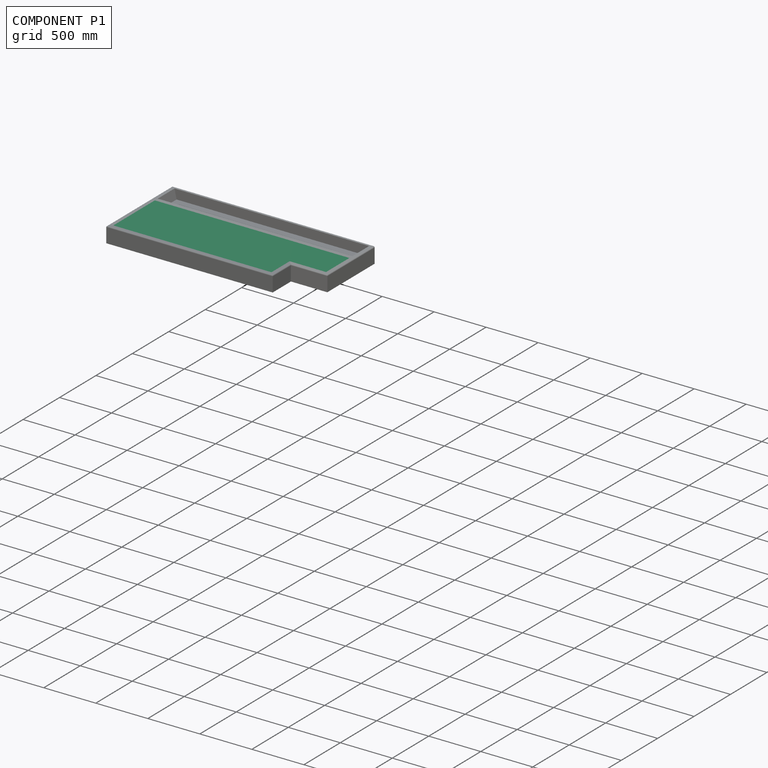
[diagram: component P1 — assembled]
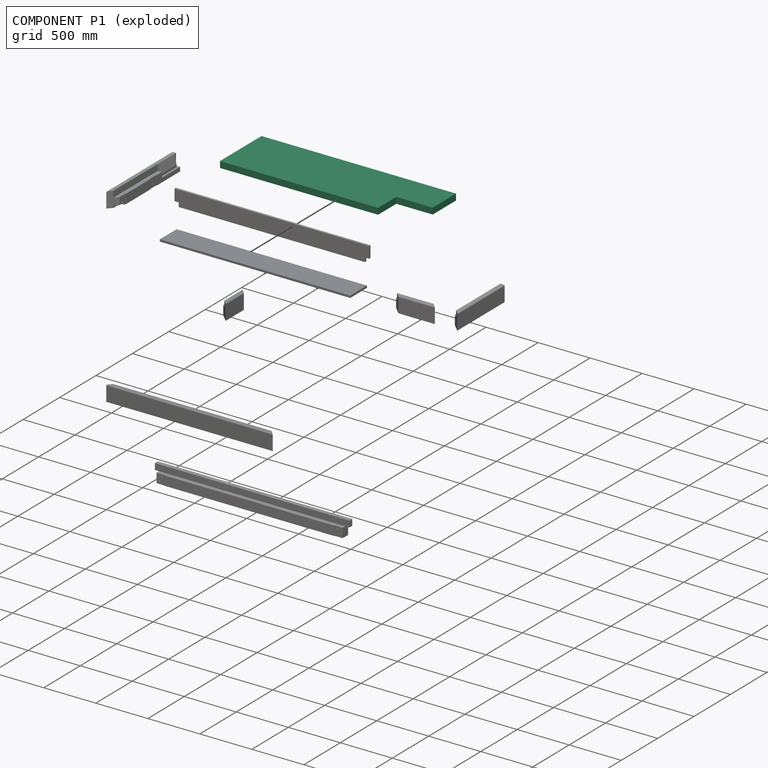
[diagram: component P1 — exploded]
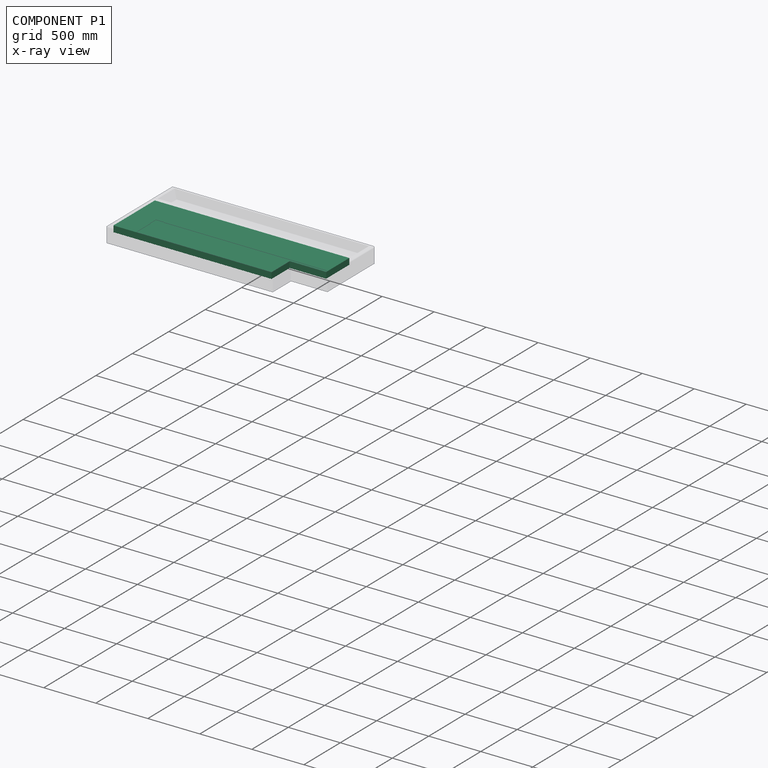
[diagram: component P1 — x-ray view]
COMPONENT P1 — recipe-attached (CADFS 00159862, mesh-verified: the recipe's output STEP matches this component's geometry to below the mesh-comparison resolution (tessellation chordal tolerance ~2.93 mm)).
Held by: FASTENED mate "Fastened 7" to P7.
Construction recipe (FeatureScript — the CAD program that rebuilds this solid; sketch coordinates are in the units given by the * unit suffixes, e.g. mm):

FeatureScript 1511;
import(path : "onshape/std/geometry.fs", version : "1511.0");
import(path : "onshape/std/common.fs", version : "1511.0");
const mm = millimeter;
const VERTEX = EntityType.VERTEX;
const EDGE = EntityType.EDGE;
const FACE = EntityType.FACE;
const BODY = EntityType.BODY;
function v(x, y){return vector(x, y);}
function OD(order){return orderDisambiguation(order);}
function OSD(set){return originalSetDisambiguation(set);}
function TD(topology){return topologyDisambiguation(topology);}
function TDD(query){return trueDependencyDisambiguation(query);}
function sQuery(a, b, c) {return sketchEntityQuery(a, b, c);}

annotation { "Feature Type Name" : "Feature", "Feature Type Description" : "" }
export const myFeature = defineFeature(function(context is Context, id is Id, definition is map)
    precondition{}
    {
        {
            assignVariable(context, id + "F0", {"name" : "t", "anyValue" : 60 * mm});
        }
        {
            var Q0;
            Q0=qCreatedBy(makeId("Top.planeOp"),FACE);
            var sketch = newSketch(context, id + "F1", { "sketchPlane" : qUnion([Q0])});
            skLineSegment(sketch, "E0.bottom", {"start": v(935, -285) * mm, "end": v(-935, -285) * mm});
            skLineSegment(sketch, "E0.top", {"start": v(935, 285) * mm, "end": v(-935, 285) * mm});
            skLineSegment(sketch, "E0.left", {"start": v(935, -285) * mm, "end": v(935, 285) * mm});
            skLineSegment(sketch, "E0.right", {"start": v(-935, -285) * mm, "end": v(-935, 285) * mm});
            skPoint(sketch, "E0.middle", {"position": v(0, 0) * mm});
            skLineSegment(sketch, "E1", {"start": v(585, -285) * mm, "end": v(585, -35) * mm});
            skLineSegment(sketch, "E2", {"start": v(585, -35) * mm, "end": v(935, -35) * mm});
            skSolve(sketch);
        }
        {
            var Q0;
            {var subQ2=sQuery(id+"F1.wireOp",EDGE,"E0.top");Q0=makeQuery(id+"F1.imprint","IMPRINT",FACE,{"disambiguationData":[TD([[makeQuery(id+"F1.imprint","IMPRINT",EDGE,{"derivedFrom":subQ2}),1.0]])]});}
            extrude(context, id + "F2", {"entities" : qUnion([Q0]), "depth" : getVariable(context, 't')});
        }
    });
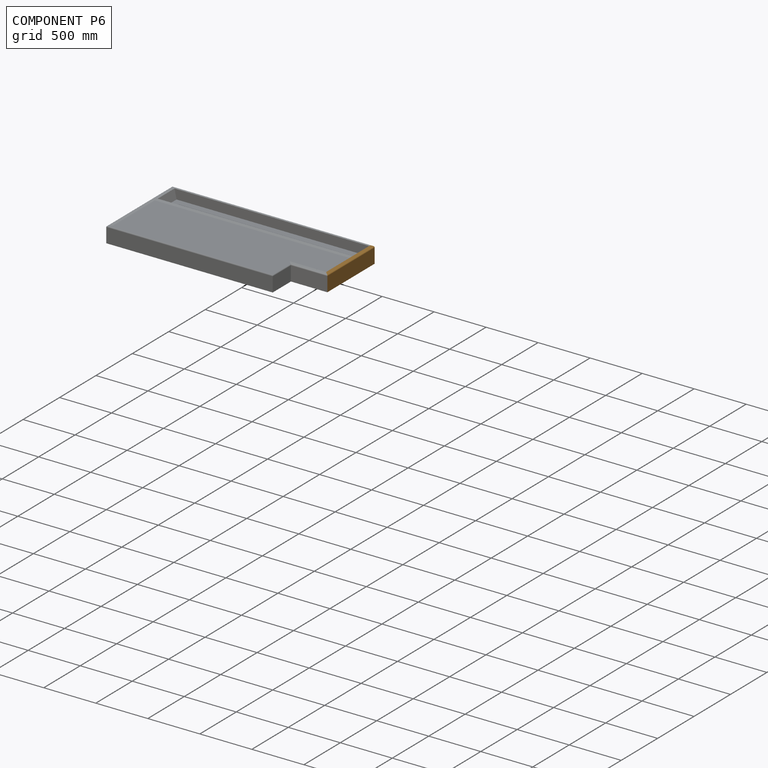
[diagram: component P6 — assembled]
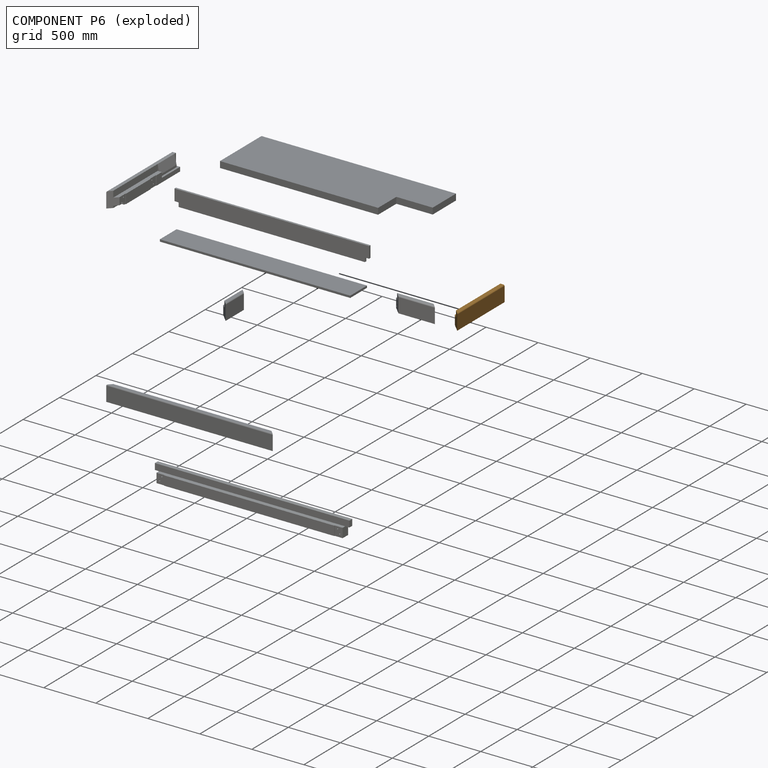
[diagram: component P6 — exploded]
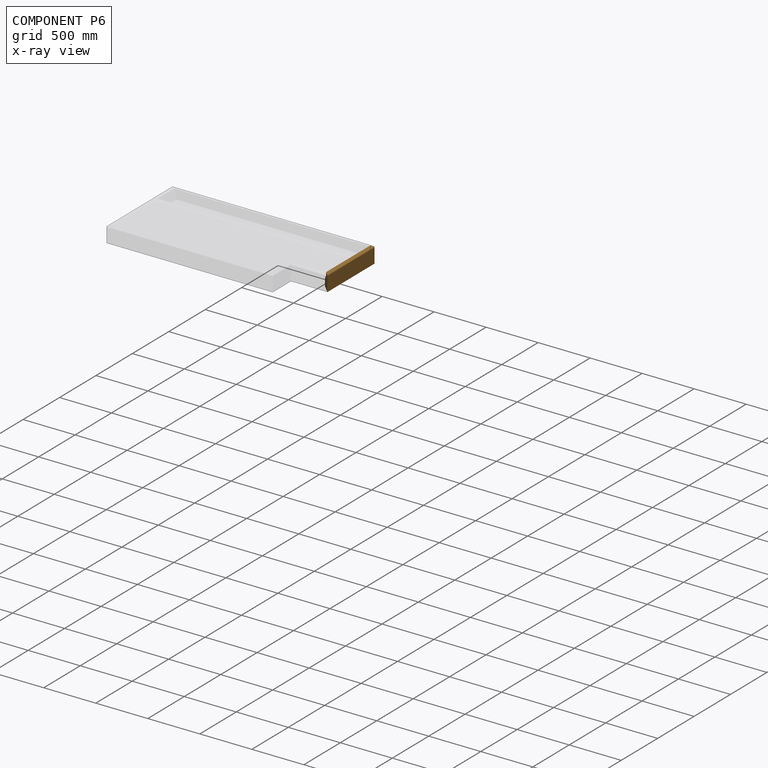
[diagram: component P6 — x-ray view]
COMPONENT P6 — geometry summary (no construction recipe available for this part):
  bounding box: 650.0 x 150.0 x 80.0 mm
  B-rep topology: 1 solid, 30 faces, 146 edges
  volume: 5596966 mm^3 (72% of its bounding box)
Held by: FASTENED mate "Fastened 6" to P0.
PROVENANCE & LICENSES
Assembly (occurrences, transforms, mates, per-part STEP geometry): AutoMate dataset, Zenodo record 7776208, CC0.
Construction recipes: CADFS (HuggingFace VladPyatov/CADFS, CC-BY-4.0, layered over the ABC dataset), FeatureScript reconstruction programs keyed by ABC model id.
Join: ABC meta listings map ABC model id -> Onshape documentId; within a shared document, parts are matched by geometric signature (bounding-box dims + volume at 0.1% relative tolerance, exact B-rep face/solid counts).
Verification: 6 of this assembly's 9 components carry a recipe attachment, and every attachment is mesh-verified: the CADFS STEP and the AutoMate member STEP were compared as meshes in their shared local frame (symmetric sampled-point-to-mesh distance); worst across the 6 attachments: below the mesh-comparison resolution (tessellation chordal tolerance ~2.93 mm) on a 1956 mm part.
Renders: orthographic iso camera (az 35 / el 25); the floor grid conveys scale (grid pitch printed in each image; no ruler). In the exploded view each component is displaced by its stored offset vector: the offsets alone carry the explosion direction (mate normal/axis signs are not orientation cues and do not encode it), and separation distances are assigned per mate-chain, not proportionally to assembly-order depth.
